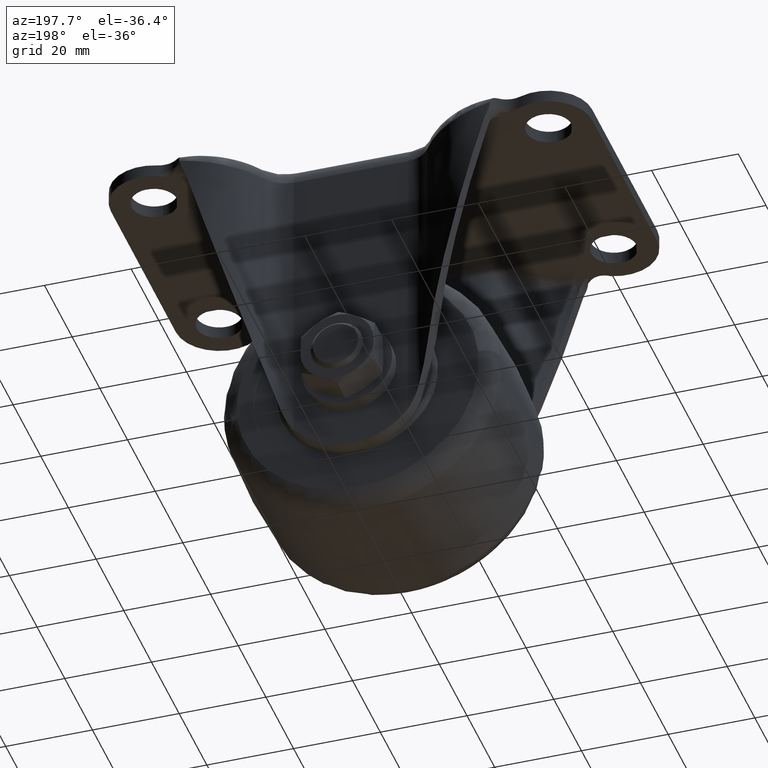
[diagram: clean part render]
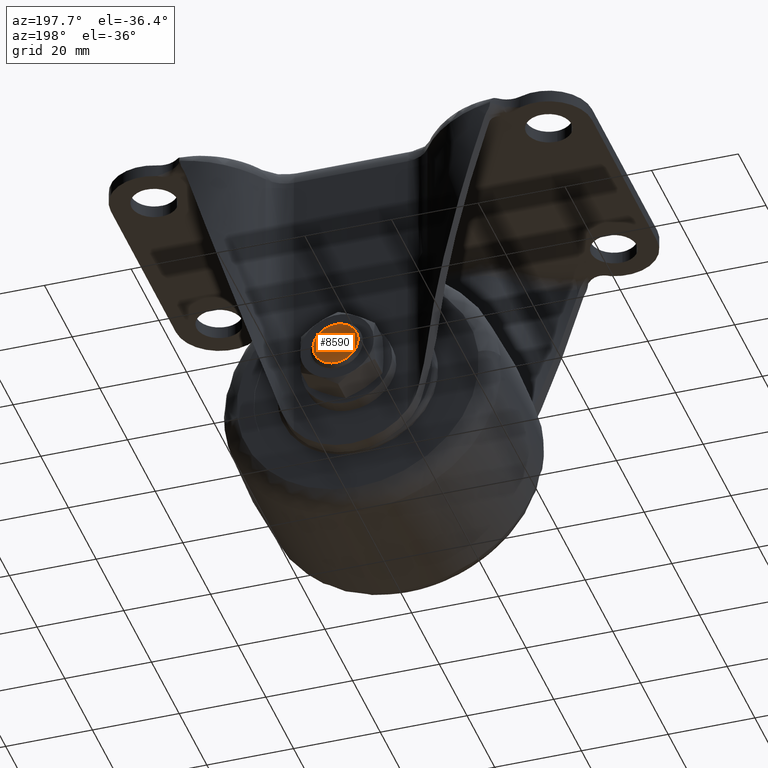
[diagram: same view with one face highlighted and labeled with its STEP entity id]
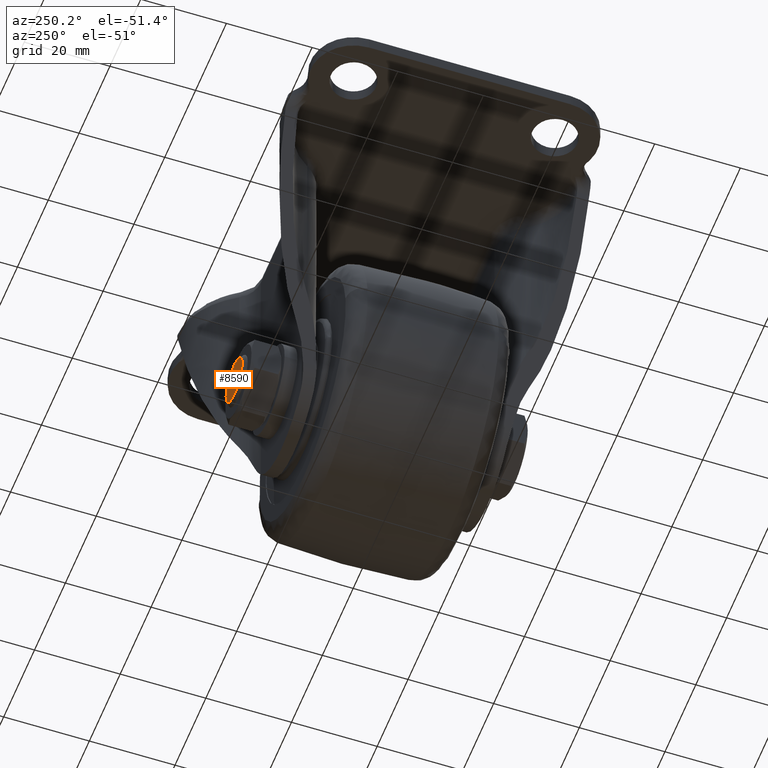
[diagram: same view with one face highlighted and labeled with its STEP entity id]
A machine part, auxiliary view. The second image highlights one B-rep face of the part: STEP entity #8590.
A second angle (auxiliary view) of the same face is appended — the face is thin or edge-on in the first view.
In plain terms, the highlighted face is a freeform B-spline surface patch.
Its self-contained STEP definition (entity closure, byte-faithful):
#8519=CARTESIAN_POINT('',(5.717892811803007,35.0,-53.780520020157127));
#8520=CARTESIAN_POINT('',(5.717892811803007,35.0,-65.219480258792629));
#8521=CARTESIAN_POINT('',(-5.717892997777969,35.0,-53.780520020157127));
#8522=CARTESIAN_POINT('',(-5.717892997777969,35.0,-65.219480258792629));
#8523=B_SPLINE_SURFACE_WITH_KNOTS('',1,1,((#8519,#8521),(#8520,#8522)),.UNSPECIFIED.,.F.,.F.,.U.,(2,2),(2,2),(0.0,11.438960238635500),(0.0,11.435785809580979),.UNSPECIFIED.);
#8524=CARTESIAN_POINT('',(-4.234835E-012,35.0,-64.700000000000102));
#8525=VERTEX_POINT('',#8524);
#8526=CARTESIAN_POINT('',(-5.183970135471325,34.999999999862062,-59.907987298847523));
#8527=VERTEX_POINT('',#8526);
#8528=CARTESIAN_POINT('',(-4.234835E-012,35.0,-64.700000000000102));
#8529=CARTESIAN_POINT('',(-4.806830555717371,34.999999999931035,-64.700000000005517));
#8530=CARTESIAN_POINT('',(-5.183970135471325,34.999999999862062,-59.907987298847530));
#8538=(BOUNDED_CURVE()B_SPLINE_CURVE(2,(#8528,#8529,#8530),.UNSPECIFIED.,.F.,.U.)B_SPLINE_CURVE_WITH_KNOTS((3,3),(0.0,0.236331300597982),.UNSPECIFIED.)CURVE()GEOMETRIC_REPRESENTATION_ITEM()RATIONAL_B_SPLINE_CURVE((1.0,0.723120658645949,0.969723356099223))REPRESENTATION_ITEM(''));
#8539=EDGE_CURVE('',#8525,#8527,#8538,.T.);
#8540=ORIENTED_EDGE('',*,*,#8539,.T.);
#8541=CARTESIAN_POINT('',(-4.234835E-012,35.0,-54.299999999999912));
#8542=VERTEX_POINT('',#8541);
#8543=CARTESIAN_POINT('',(-5.183970135471325,34.999999999862062,-59.907987298847530));
#8544=CARTESIAN_POINT('',(-5.200000000139350,34.999999999864556,-59.704308556978901));
#8545=CARTESIAN_POINT('',(-5.200000000136648,34.999999999867264,-59.500000000010417));
#8546=CARTESIAN_POINT('',(-5.200000000067893,34.999999999936243,-54.300000000004907));
#8547=CARTESIAN_POINT('',(-4.234835E-012,35.0,-54.299999999999912));
#8555=(BOUNDED_CURVE()B_SPLINE_CURVE(2,(#8543,#8544,#8545,#8546,#8547),.UNSPECIFIED.,.F.,.U.)B_SPLINE_CURVE_WITH_KNOTS((3,2,3),(0.236331300597982,0.250000000000000,0.500000000000000),.UNSPECIFIED.)CURVE()GEOMETRIC_REPRESENTATION_ITEM()RATIONAL_B_SPLINE_CURVE((0.969723356099223,0.983986122540598,1.0,0.707106781186547,1.0))REPRESENTATION_ITEM(''));
#8556=EDGE_CURVE('',#8527,#8542,#8555,.T.);
#8557=ORIENTED_EDGE('',*,*,#8556,.T.);
#8558=CARTESIAN_POINT('',(5.183970135462856,34.999999999862062,-59.092012701152477));
#8559=VERTEX_POINT('',#8558);
#8560=CARTESIAN_POINT('',(-4.234835E-012,35.0,-54.299999999999912));
#8561=CARTESIAN_POINT('',(4.806830555708908,34.999999999931021,-54.299999999994505));
#8562=CARTESIAN_POINT('',(5.183970135462857,34.999999999862062,-59.092012701152484));
#8570=(BOUNDED_CURVE()B_SPLINE_CURVE(2,(#8560,#8561,#8562),.UNSPECIFIED.,.F.,.U.)B_SPLINE_CURVE_WITH_KNOTS((3,3),(0.500000000000000,0.736331300597983),.UNSPECIFIED.)CURVE()GEOMETRIC_REPRESENTATION_ITEM()RATIONAL_B_SPLINE_CURVE((1.0,0.723120658645949,0.969723356099224))REPRESENTATION_ITEM(''));
#8571=EDGE_CURVE('',#8542,#8559,#8570,.T.);
#8572=ORIENTED_EDGE('',*,*,#8571,.T.);
#8573=CARTESIAN_POINT('',(5.183970135462857,34.999999999862062,-59.092012701152484));
#8574=CARTESIAN_POINT('',(5.200000000130880,34.999999999864556,-59.295691443021113));
#8575=CARTESIAN_POINT('',(5.200000000128179,34.999999999867278,-59.499999999989591));
#8576=CARTESIAN_POINT('',(5.200000000059423,34.999999999936243,-64.699999999995114));
#8577=CARTESIAN_POINT('',(-4.234835E-012,35.0,-64.700000000000102));
#8585=(BOUNDED_CURVE()B_SPLINE_CURVE(2,(#8573,#8574,#8575,#8576,#8577),.UNSPECIFIED.,.F.,.U.)B_SPLINE_CURVE_WITH_KNOTS((3,2,3),(0.736331300597983,0.750000000000000,1.0),.UNSPECIFIED.)CURVE()GEOMETRIC_REPRESENTATION_ITEM()RATIONAL_B_SPLINE_CURVE((0.969723356099224,0.983986122540599,1.0,0.707106781186547,1.0))REPRESENTATION_ITEM(''));
#8586=EDGE_CURVE('',#8559,#8525,#8585,.T.);
#8587=ORIENTED_EDGE('',*,*,#8586,.T.);
#8588=EDGE_LOOP('',(#8540,#8557,#8572,#8587));
#8589=FACE_OUTER_BOUND('',#8588,.T.);
#8590=ADVANCED_FACE('',(#8589),#8523,.T.);